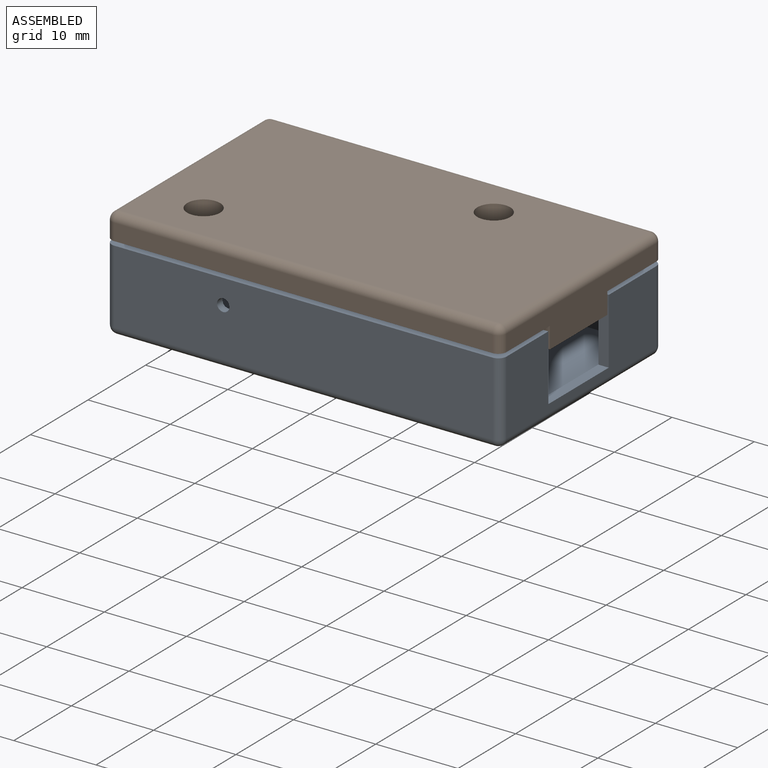
[diagram: assembled view]
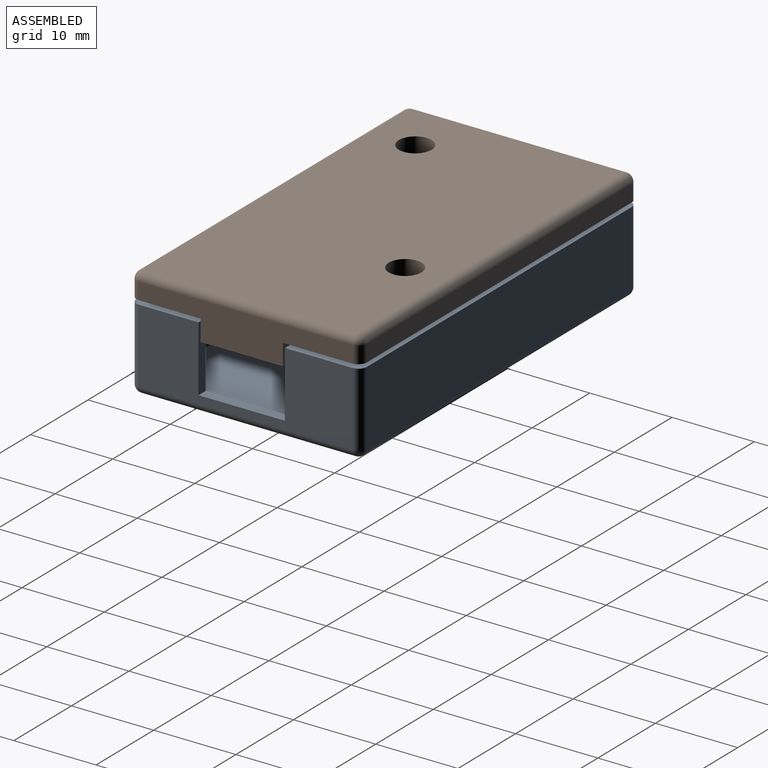
[diagram: assembled view, second angle]
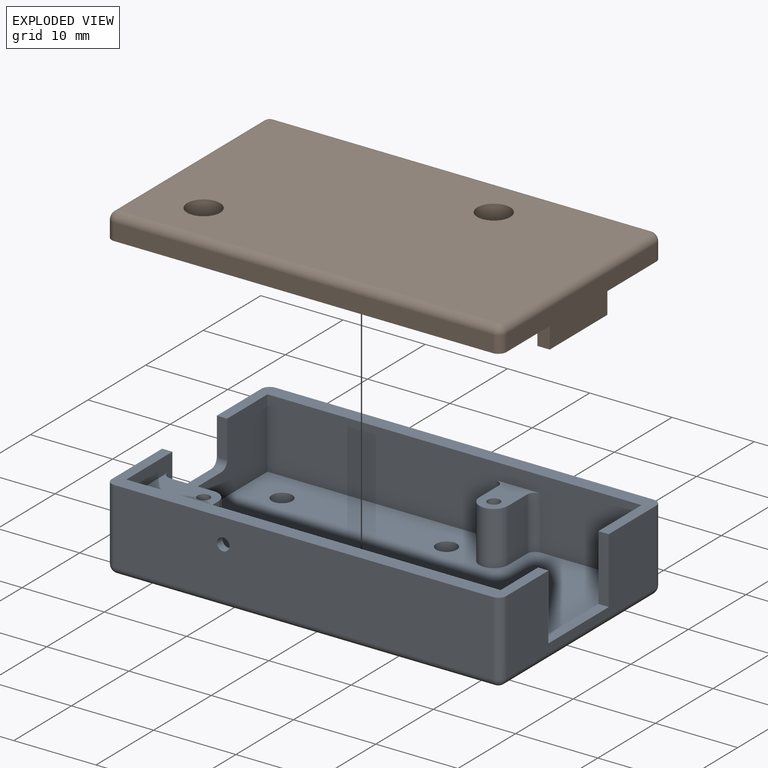
[diagram: exploded view]
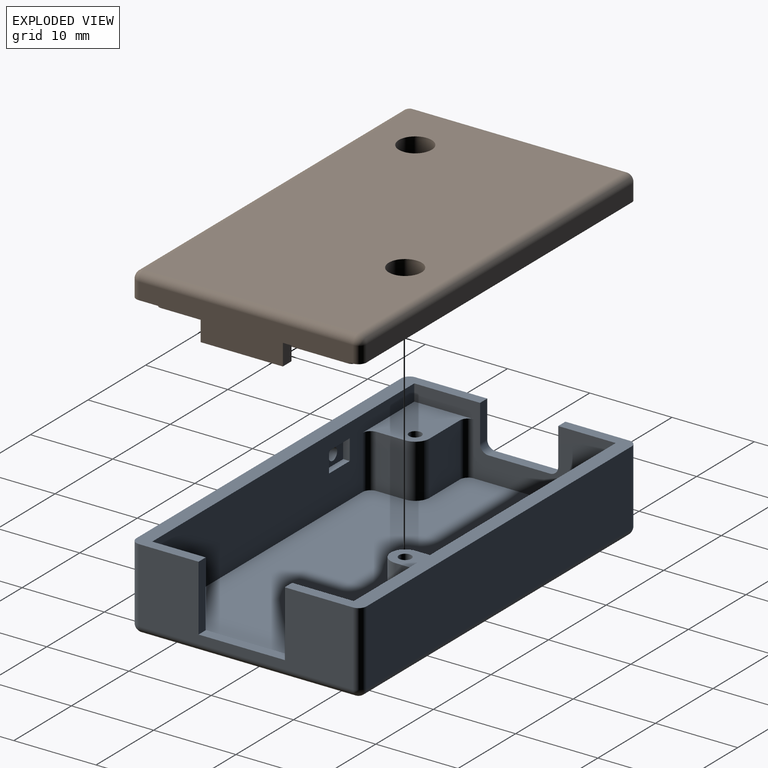
[diagram: exploded view, second angle]
FCSTD DOCUMENT  (FreeCAD 1.0R39109 (Git))
Label: M23002
License: All rights reserved
LicenseURL: http://en.wikipedia.org/wiki/All_rights_reserved
objects: Sketcher::SketchObject×15, PartDesign::Pocket×10, PartDesign::Pad×5, PartDesign::Fillet×5, TechDraw::DrawViewAnnotation×4, PartDesign::Body×2, App::Part×2, TechDraw::DrawProjGroupItem×2, App::Link×2, App::FeaturePython×2, TechDraw::DrawSVGTemplate×1, Spreadsheet::Sheet×1, TechDraw::DrawViewSpreadsheet×1, TechDraw::DrawPage×1, App::DocumentObjectGroup×1, Assembly::JointGroup×1, Assembly::AssemblyObject×1
note: 92 computed .brp shape members not serialized (recipe doc carries the construction recipe); baked Part::Feature solids carry a one-line shape summary decoded from their .brp

FEATURE [TechDraw::DrawSVGTemplate] Template
  EditableTexts = 1 OF 1=1 OF 1; 1=1=2:1; A=A; DRAWING No.=M23002; DRAWN BY=JPK; DRW_DATE=02/13/2025; MATERIAL=NYLON PA12, WHT; TITLE LINE 1=HOUSING, NEOPIXEL DRIVER; UNITS=MILLIMETERS
  Height = 431.8
  Orientation = 1
  Template = <userpath>/Downloads/FreeCAD ASME Y14.1 Compliant Engineering Drawing Templates Size_ ANSI A, B, C, D, & E - 6219052/files/ANSI_C_Metric.svg
  Width = 558.8
FEATURE [TechDraw::DrawViewAnnotation] Annotation
  Font = osifont
  LineSpace = 100
  LockPosition = false
  MaxWidth = -1
  Rotation = 0
  Scale = 2
  ScaleType = 0
  Text = -1
  TextSize = 8
  TextStyle = 0
  X = 335.125
  Y = 257.895
FEATURE [TechDraw::DrawViewAnnotation] Annotation001
  Font = osifont
  LineSpace = 100
  LockPosition = false
  MaxWidth = -1
  Rotation = 0
  Scale = 2
  ScaleType = 0
  Text = -2
  TextSize = 8
  TextStyle = 0
  X = 339.163
  Y = 152.907
FEATURE [TechDraw::DrawViewAnnotation] Annotation002
  Font = osifont
  LineSpace = 100
  LockPosition = false
  MaxWidth = 200
  Rotation = 0
  ScaleType = 1
  Text = NOTES | 1. FABRICATE USING POWDER BED FUSION PROCESS PER ELECTRONIC DATA FILE. FABRICATION ORIENTATION TO BE SELECTED BY VENDOR. | 2. SURFACE ROUGHNESS (RA) SHALL NOT EXCEED 10 MICROMETERS PER ASME B46.1 | 3. IDENTIFY PART WITH PART NUMBER AND REVISION BY BAGGING AND TAGGING.
  TextSize = 4
  TextStyle = 0
  X = 124.179
  Y = 385.021
FEATURE [Spreadsheet::Sheet] Spreadsheet001  label="Data Files"
  cells = A1='ELECTRONIC DATA FILE LIST; A2='DASH NO.; B2='FILE NAME; A3=-1; B3='M23002-1_revNC.stl; A4=-2; B4='M23002-2_revNC.stl
FEATURE [TechDraw::DrawViewSpreadsheet] Sheet
  CellEnd = B4
  CellStart = A1
  Font = osifont
  LineWidth = 1
  LockPosition = false
  Rotation = 0
  ScaleType = 2
  Source = -> Spreadsheet001
  Symbol = <svg\n	xmlns="http://www.w3.org/2000/svg" version="1.1"\n	xmlns:freecad="https://www.freecad.org/wiki/index.php?title=Svg_Namespace">\n<g id="Sheet">\n  <g id="Sheet_colA">\n    <rect x="0" y="0" width="426" height="30" style="fill:none;stroke-width:1;stroke:#000000;" />\n    <text text-anchor="middle" style="" x="213" y="22.5" font-family="osifont" font-size="18" fill="#000000">ELECTRONIC DATA FILE LIST</text>\n    <rect x="0" y="30" width="100" height="30" style="fill:none;stroke-width:1;stroke:#000000;" />\n    <text text-anchor="middle" style="" x="50" y="52.5" font-family="osifont" font-size="18" fill="#000000">DASH NO.</text>\n    <rect x="0" y="60" width="100" height="30" style="fill:none;stroke-width:1;stroke:#000000;" />\n    <text text-anchor="middle" style="" x="50" y="82.5" font-family="osifont" font-size="18" fill="#000000">-1</text>\n    <rect x="0" y="90" width="100" height="30" style="fill:none;stroke-width:1;stroke:#000000;" />\n    <text text-anchor="middle" style="" x="50" y="112.5" font-family="osifont" font-size="18" fill="#000000">-2</text>\n  </g>\n  <g id="Sheet_colB">\n    <rect x="100" y="30" width="326" height="30" style="fill:none;stroke-width:1;stroke:#000000;" />\n    <text text-anchor="middle" style="" x="263" y="52.5" font-family="osifont" font-size="18" fill="#000000">FILE NAME</text>\n    <rect x="100" y="60" width="326" height="30" style="fill:none;stroke-width:1;stroke:#000000;" />\n    <text style="" x="109" y="82.5" font-family="osifont" font-size="18" fill="#000000">M23002-1_revNC.stl</text>\n    <rect x="100" y="90" width="326" height="30" style="fill:none;stroke-width:1;stroke:#000000;" />\n    <text style="" x="109" y="112.5" font-family="osifont" font-size="18" fill="#000000">M23002-2_revNC.stl</text>\n  </g>\n</g>\n\n</svg>
  TextSize = 18
  X = 81.6872
  Y = 331.232
FEATURE [Sketcher::SketchObject] Sketch
  ArcFitTolerance = 1e-06
  AttachmentSupport = -> [XY_Plane009]
  FullyConstrained = true
  MakeInternals = false
  MapMode = 5
  sketch-geometry (5):
    g0: LineSegment StartX=-24 StartY=-14 StartZ=0 EndX=24 EndY=-14 EndZ=0
    g1: LineSegment StartX=24 StartY=-14 StartZ=0 EndX=24 EndY=14 EndZ=0
    g2: LineSegment StartX=24 StartY=14 StartZ=0 EndX=-24 EndY=14 EndZ=0
    g3: LineSegment StartX=-24 StartY=14 StartZ=0 EndX=-24 EndY=-14 EndZ=0
    g4: GeomPoint [constr] X=0 Y=0 Z=0
  constraints (12):
    c: Coincident(g0,g1)
    c: Coincident(g1,g2)
    c: Coincident(g2,g3)
    c: Coincident(g3,g0)
    c: Horizontal(g0)
    c: Horizontal(g2)
    c: Vertical(g1)
    c: Vertical(g3)
    c: Symmetric(g2,g0,g4)
    c: Coincident(g4,g-1)
    c: DistanceX(g2,g2) = 48
    c: DistanceY(g3,g3) = 28
FEATURE [PartDesign::Pad] Pad
  Direction = (0,0,1)
  Length = 10
  Length2 = 10
  Profile = -> Sketch
  ReferenceAxis = -> Sketch [N_Axis]
  Refine = true
  Suppressed = false
  Type = 0
FEATURE [Sketcher::SketchObject] Sketch001
  ArcFitTolerance = 1e-06
  AttachmentSupport = -> [Pad]
  FullyConstrained = true
  MakeInternals = false
  MapMode = 5
  Placement = pos=(0,0,10) rot=(0,0,1;0rad)
  sketch-geometry (5):
    g0: LineSegment StartX=-22.75 StartY=-12.25 StartZ=0 EndX=22.75 EndY=-12.25 EndZ=0
    g1: LineSegment StartX=22.75 StartY=-12.25 StartZ=0 EndX=22.75 EndY=12.25 EndZ=0
    g2: LineSegment StartX=22.75 StartY=12.25 StartZ=0 EndX=-22.75 EndY=12.25 EndZ=0
    g3: LineSegment StartX=-22.75 StartY=12.25 StartZ=0 EndX=-22.75 EndY=-12.25 EndZ=0
    g4: GeomPoint [constr] X=0 Y=0 Z=0
  constraints (12):
    c: Coincident(g0,g1)
    c: Coincident(g1,g2)
    c: Coincident(g2,g3)
    c: Coincident(g3,g0)
    c: Horizontal(g0)
    c: Horizontal(g2)
    c: Vertical(g1)
    c: Vertical(g3)
    c: Symmetric(g2,g0,g4)
    c: Coincident(g4,g-1)
    c: DistanceX(g2,g2) = 45.5
    c: Distance(g1,g1) = 24.5
FEATURE [PartDesign::Pocket] Pocket
  BaseFeature = -> Pad
  Direction = (0,0,-1)
  Length = 8.5
  Length2 = 5
  Profile = -> Sketch001
  ReferenceAxis = -> Sketch001 [N_Axis]
  Refine = true
  Suppressed = false
  Type = 0
FEATURE [Sketcher::SketchObject] Sketch002
  ArcFitTolerance = 1e-06
  AttachmentSupport = -> [Pocket]
  ExternalGeometry = -> [Pocket]
  FullyConstrained = true
  MakeInternals = false
  MapMode = 5
  Placement = pos=(0,0,1.5) rot=(0,0,1;0rad)
  sketch-geometry (9):
    g0: LineSegment StartX=-22.75 StartY=-6 StartZ=0 EndX=-16.5 EndY=-6 EndZ=0
    g1: LineSegment StartX=-14.75 StartY=-12.25 StartZ=0 EndX=-14.75 EndY=-7.75 EndZ=0
    g2: ArcOfCircle CenterX=-16.5 CenterY=-7.75 CenterZ=0 NormalX=0 NormalY=0 NormalZ=1 AngleXU=0 Radius=1.75 StartAngle=-1.8465e-12 EndAngle=1.5708
    g3: LineSegment StartX=6 StartY=12.25 StartZ=0 EndX=6 EndY=8 EndZ=0
    g4: LineSegment StartX=9.5 StartY=12.25 StartZ=0 EndX=9.5 EndY=8 EndZ=0
    g5: ArcOfCircle CenterX=7.75 CenterY=8 CenterZ=0 NormalX=0 NormalY=0 NormalZ=1 AngleXU=0 Radius=1.75 StartAngle=3.14159 EndAngle=6.28319
    g6: LineSegment StartX=-22.75 StartY=-6 StartZ=0 EndX=-22.75 EndY=-12.25 EndZ=0
    g7: LineSegment StartX=-22.75 StartY=-12.25 StartZ=0 EndX=-14.75 EndY=-12.25 EndZ=0
    g8: LineSegment StartX=6 StartY=12.25 StartZ=0 EndX=9.5 EndY=12.25 EndZ=0
  constraints (25):
    c: PointOnObject(g0,g-3)
    c: Horizontal(g0)
    c: PointOnObject(g1,g-5)
    c: Vertical(g1)
    c: Tangent(g2,g1) = -1.5708
    c: Tangent(g2,g0) = 1.5708
    c: Radius(g2) = 1.75
    c: Distance(g2,g-3) = 6.25
    c: Distance(g2,g-5) = 4.5
    c: PointOnObject(g3,g-4)
    c: Vertical(g3)
    c: PointOnObject(g4,g-4)
    c: Vertical(g4)
    c: Coincident(g5,g4)
    c: Tangent(g4,g5,g4) = 1.5708
    c: Tangent(g5,g3) = -1.5708
    c: Equal(g5,g2)
    c: Distance(g5,g-3) = 30.5
    c: Distance(g5,g-5) = 20.25
    c: Coincident(g6,g0)
    c: Coincident(g6,g-5)
    c: Coincident(g7,g6)
    c: Coincident(g7,g1)
    c: Coincident(g8,g3)
    c: Coincident(g8,g4)
FEATURE [PartDesign::Pad] Pad001
  BaseFeature = -> Pocket
  Direction = (0,0,1)
  Length = 6.5
  Length2 = 10
  Profile = -> Sketch002
  ReferenceAxis = -> Sketch002 [N_Axis]
  Refine = true
  Suppressed = false
  Type = 0
FEATURE [Sketcher::SketchObject] Sketch003
  ArcFitTolerance = 1e-06
  AttachmentSupport = -> [Pad001]
  ExternalGeometry = -> [Pad001]
  FullyConstrained = true
  MakeInternals = false
  MapMode = 5
  Placement = pos=(0,0,8) rot=(0,0,1;0rad)
  sketch-geometry (2):
    g0: Circle CenterX=-16.5 CenterY=-7.75 CenterZ=0 NormalX=0 NormalY=0 NormalZ=1 AngleXU=0 Radius=0.75
    g1: Circle CenterX=7.75 CenterY=8 CenterZ=0 NormalX=0 NormalY=0 NormalZ=1 AngleXU=0 Radius=0.75
  constraints (4):
    c: Diameter(g0) = 1.5
    c: Coincident(g0,g-3)
    c: Coincident(g1,g-4)
    c: Equal(g1,g0)
FEATURE [PartDesign::Pocket] Pocket001
  BaseFeature = -> Pad001
  Direction = (0,0,-1)
  Length = 5
  Length2 = 5
  Profile = -> Sketch003
  ReferenceAxis = -> Sketch003 [N_Axis]
  Refine = true
  Suppressed = false
  Type = 0
FEATURE [Sketcher::SketchObject] Sketch004
  ArcFitTolerance = 1e-06
  AttachmentSupport = -> [Pocket001]
  ExternalGeometry = -> [Pocket001]
  FullyConstrained = true
  MakeInternals = false
  MapMode = 5
  Placement = pos=(-24,0,0) rot=(0.57735,-0.57735,-0.57735;2.0944rad)
  sketch-geometry (4):
    g0: LineSegment StartX=-5.25 StartY=10 StartZ=0 EndX=-5.25 EndY=4.5 EndZ=0
    g1: LineSegment StartX=-5.25 StartY=4.5 StartZ=0 EndX=4.25 EndY=4.5 EndZ=0
    g2: LineSegment StartX=4.25 StartY=4.5 StartZ=0 EndX=4.25 EndY=10 EndZ=0
    g3: LineSegment StartX=4.25 StartY=10 StartZ=0 EndX=-5.25 EndY=10 EndZ=0
  constraints (12):
    c: Coincident(g0,g1)
    c: Coincident(g1,g2)
    c: Coincident(g2,g3)
    c: Coincident(g3,g0)
    c: Vertical(g0)
    c: Vertical(g2)
    c: Horizontal(g1)
    c: Horizontal(g3)
    c: PointOnObject(g0,g-3)
    c: DistanceX(g3,g3) = 9.5
    c: Distance(g2,g2) = 5.5
    c: Distance(g2,g-4) = 9.75
FEATURE [PartDesign::Pocket] Pocket002
  BaseFeature = -> Pocket001
  Direction = (1,0,0)
  Length = 5
  Length2 = 5
  Profile = -> Sketch004
  ReferenceAxis = -> Sketch004 [N_Axis]
  Refine = true
  Suppressed = false
  Type = 2
FEATURE [Sketcher::SketchObject] Sketch005
  ArcFitTolerance = 1e-06
  AttachmentSupport = -> [Pocket002]
  ExternalGeometry = -> [Pocket002]
  FullyConstrained = true
  MakeInternals = false
  MapMode = 5
  Placement = pos=(24,0,0) rot=(0.57735,0.57735,0.57735;2.0944rad)
  expr: Constraints[11] = 2 + 6.48 - (10.5 - 10.05) / 2
  sketch-geometry (4):
    g0: LineSegment StartX=-5.745 StartY=10 StartZ=0 EndX=-5.745 EndY=2 EndZ=0
    g1: LineSegment StartX=-5.745 StartY=2 StartZ=0 EndX=4.755 EndY=2 EndZ=0
    g2: LineSegment StartX=4.755 StartY=2 StartZ=0 EndX=4.755 EndY=10 EndZ=0
    g3: LineSegment StartX=4.755 StartY=10 StartZ=0 EndX=-5.745 EndY=10 EndZ=0
  constraints (12):
    c: Coincident(g0,g1)
    c: Coincident(g1,g2)
    c: Coincident(g2,g3)
    c: Coincident(g3,g0)
    c: Vertical(g0)
    c: Vertical(g2)
    c: Horizontal(g1)
    c: Horizontal(g3)
    c: PointOnObject(g0,g-3)
    c: DistanceX(g3,g3) = 10.5
    c: DistanceY(g0,g0) = 8
    c: Distance(g0,g-4) = 8.255
FEATURE [PartDesign::Pocket] Pocket003
  BaseFeature = -> Pocket002
  Direction = (-1,0,0)
  Length = 5
  Length2 = 5
  Profile = -> Sketch005
  ReferenceAxis = -> Sketch005 [N_Axis]
  Refine = true
  Suppressed = false
  Type = 2
FEATURE [PartDesign::Fillet] Fillet
  Base = -> Pocket003 [Edge28,Edge26,Edge43,Edge48,Edge53,Edge55]
  BaseFeature = -> Pocket003
  Radius = 1
  Refine = true
  SupportTransform = false
  Suppressed = false
  UseAllEdges = false
FEATURE [PartDesign::Fillet] Fillet001
  Base = -> Fillet [Edge5,Edge24,Edge25,Edge7,Edge9,Edge29,Edge32,Edge28]
  BaseFeature = -> Fillet
  Radius = 1
  Refine = true
  SupportTransform = false
  Suppressed = false
  UseAllEdges = false
FEATURE [Sketcher::SketchObject] Sketch012
  ArcFitTolerance = 1e-06
  AttachmentSupport = -> [Fillet001]
  ExternalGeometry = -> [Fillet001]
  FullyConstrained = true
  MakeInternals = false
  MapMode = 5
  Placement = pos=(0,-14,0) rot=(1,0,0;1.5708rad)
  sketch-geometry (1):
    g0: Circle CenterX=-9.75 CenterY=7 CenterZ=0 NormalX=0 NormalY=0 NormalZ=1 AngleXU=0 Radius=0.75
  constraints (3):
    c: Diameter(g0) = 1.5
    c: Distance(g0,g-3) = 14.25
    c: Distance(g0,g-4) = 3
FEATURE [PartDesign::Pocket] Pocket007
  BaseFeature = -> Fillet001
  Direction = (0,1,-2e-16)
  Length = 5
  Length2 = 5
  Profile = -> Sketch012
  ReferenceAxis = -> Sketch012 [N_Axis]
  Refine = true
  Suppressed = false
  Type = 2
FEATURE [Sketcher::SketchObject] Sketch013
  ArcFitTolerance = 1e-06
  AttachmentSupport = -> [Pocket007]
  ExternalGeometry = -> [Pocket007]
  FullyConstrained = true
  MakeInternals = false
  MapMode = 5
  Placement = pos=(0,-12.25,0) rot=(0,0.707107,0.707107;3.14159rad)
  sketch-geometry (5):
    g0: LineSegment StartX=7.95 StartY=8.25 StartZ=0 EndX=7.95 EndY=5.75 EndZ=0
    g1: LineSegment StartX=7.95 StartY=5.75 StartZ=0 EndX=11.55 EndY=5.75 EndZ=0
    g2: LineSegment StartX=11.55 StartY=5.75 StartZ=0 EndX=11.55 EndY=8.25 EndZ=0
    g3: LineSegment StartX=11.55 StartY=8.25 StartZ=0 EndX=7.95 EndY=8.25 EndZ=0
    g4: GeomPoint [constr] X=9.75 Y=7 Z=0
  constraints (12):
    c: Coincident(g0,g1)
    c: Coincident(g1,g2)
    c: Coincident(g2,g3)
    c: Coincident(g3,g0)
    c: Vertical(g0)
    c: Vertical(g2)
    c: Horizontal(g1)
    c: Horizontal(g3)
    c: Symmetric(g2,g0,g4)
    c: Coincident(g4,g-3)
    c: DistanceX(g3,g3) = 3.6
    c: DistanceY(g2,g2) = 2.5
FEATURE [PartDesign::Pocket] Pocket008
  BaseFeature = -> Pocket007
  Direction = (0,-1,2e-16)
  Length = 0.8
  Length2 = 5
  Profile = -> Sketch013
  ReferenceAxis = -> Sketch013 [N_Axis]
  Refine = true
  Suppressed = false
  Type = 0
FEATURE [Sketcher::SketchObject] Sketch015
  ArcFitTolerance = 1e-06
  AttachmentSupport = -> [Pocket008]
  ExternalGeometry = -> [Pocket008]
  FullyConstrained = true
  MakeInternals = false
  MapMode = 5
  Placement = pos=(0,0,1.5) rot=(0,0,1;0rad)
  sketch-geometry (2):
    g0: Circle CenterX=-18 CenterY=8 CenterZ=0 NormalX=0 NormalY=0 NormalZ=1 AngleXU=0 Radius=1.25
    g1: Circle CenterX=2 CenterY=8 CenterZ=0 NormalX=0 NormalY=0 NormalZ=1 AngleXU=0 Radius=1.25
  constraints (6):
    c: Equal(g0,g1)
    c: Distance(g0,g-3) = 6
    c: Distance(g1,g-3) = 6
    c: Distance(g0,g-4) = 6
    c: Distance(g1,g-4) = 26
    c: Diameter(g0) = 2.5
FEATURE [PartDesign::Pocket] Pocket009
  BaseFeature = -> Pocket008
  Direction = (0,0,-1)
  Length = 5
  Length2 = 5
  Profile = -> Sketch015
  ReferenceAxis = -> Sketch015 [N_Axis]
  Refine = true
  Suppressed = false
  Type = 1
FEATURE [PartDesign::Body] Body  label="M23002-1-BODY"
  AllowCompound = false
  Group = -> [Sketch,Pad,Sketch001,Pocket,Sketch002,Pad001,Sketch003,Pocket001,Sketch004,Pocket002,Sketch005,Pocket003,Fillet,Fillet001,Sketch012,Pocket007,Sketch013,Pocket008,Sketch015,Pocket009]
  Origin = -> Origin009
  Tip = -> Pocket009
FEATURE [App::Part] Part  label="M23002-1"
  Group = -> [Body]
  Origin = -> Origin008
FEATURE [TechDraw::DrawProjGroupItem] View
  CoarseView = false
  Direction = (0.409575,-0.709407,0.573577)
  Focus = 100
  HardHidden = false
  IsoCount = 0
  IsoHidden = false
  IsoVisible = false
  LockPosition = false
  Perspective = false
  Rotation = 0
  RotationVector = (1,0,0)
  Scale = 2
  ScaleType = 0
  ScrubCount = 1
  SeamHidden = false
  SeamVisible = false
  SmoothHidden = false
  SmoothVisible = true
  Source = -> [Part]
  Type = 0
  X = 370.659
  XDirection = (0.866026,0.499999,4.05816e-07)
  Y = 291.684
FEATURE [Sketcher::SketchObject] Sketch006
  ArcFitTolerance = 1e-06
  AttachmentSupport = -> [XY_Plane012]
  FullyConstrained = true
  MakeInternals = false
  MapMode = 5
  sketch-geometry (5):
    g0: LineSegment StartX=-24 StartY=14 StartZ=0 EndX=-24 EndY=-14 EndZ=0
    g1: LineSegment StartX=-24 StartY=-14 StartZ=0 EndX=24 EndY=-14 EndZ=0
    g2: LineSegment StartX=24 StartY=-14 StartZ=0 EndX=24 EndY=14 EndZ=0
    g3: LineSegment StartX=24 StartY=14 StartZ=0 EndX=-24 EndY=14 EndZ=0
    g4: GeomPoint [constr] X=0 Y=-1e-16 Z=0
  constraints (12):
    c: Coincident(g0,g1)
    c: Coincident(g1,g2)
    c: Coincident(g2,g3)
    c: Coincident(g3,g0)
    c: Vertical(g0)
    c: Vertical(g2)
    c: Horizontal(g1)
    c: Horizontal(g3)
    c: Symmetric(g2,g0,g4)
    c: Coincident(g4,g-1)
    c: DistanceX(g3,g3) = 48
    c: DistanceY(g0,g0) = 28
FEATURE [PartDesign::Pad] Pad002
  Direction = (0,0,1)
  Length = 4
  Length2 = 10
  Profile = -> Sketch006
  ReferenceAxis = -> Sketch006 [N_Axis]
  Refine = true
  Suppressed = false
  Type = 0
FEATURE [Sketcher::SketchObject] Sketch007
  ArcFitTolerance = 1e-06
  AttachmentSupport = -> [Pad002]
  ExternalGeometry = -> [Pad002]
  FullyConstrained = true
  MakeInternals = false
  MapMode = 5
  Placement = pos=(0,0,4) rot=(0,0,1;0rad)
  sketch-geometry (15):
    g0: LineSegment StartX=-24 StartY=-14 StartZ=0 EndX=24 EndY=-14 EndZ=0
    g1: LineSegment StartX=24 StartY=-14 StartZ=0 EndX=24 EndY=14 EndZ=0
    g2: LineSegment StartX=24 StartY=14 StartZ=0 EndX=-24 EndY=14 EndZ=0
    g3: LineSegment StartX=-24 StartY=14 StartZ=0 EndX=-24 EndY=-14 EndZ=0
    g4: GeomPoint [constr] X=0 Y=0 Z=0
    g5: LineSegment StartX=-22.5 StartY=-12 StartZ=0 EndX=22.5 EndY=-12 EndZ=0
    g6: LineSegment StartX=22.5 StartY=-12 StartZ=0 EndX=22.5 EndY=12 EndZ=0
    g7: LineSegment StartX=22.5 StartY=12 StartZ=0 EndX=-22.5 EndY=12 EndZ=0
    g8: LineSegment StartX=-22.5 StartY=12 StartZ=0 EndX=-22.5 EndY=-12 EndZ=0
    g9: GeomPoint [constr] X=0 Y=0 Z=0
    g10: LineSegment StartX=-20.75 StartY=-10.25 StartZ=0 EndX=20.75 EndY=-10.25 EndZ=0
    g11: LineSegment StartX=20.75 StartY=-10.25 StartZ=0 EndX=20.75 EndY=10.25 EndZ=0
    g12: LineSegment StartX=20.75 StartY=10.25 StartZ=0 EndX=-20.75 EndY=10.25 EndZ=0
    g13: LineSegment StartX=-20.75 StartY=10.25 StartZ=0 EndX=-20.75 EndY=-10.25 EndZ=0
    g14: GeomPoint [constr] X=0 Y=0 Z=0
  constraints (35):
    c: Coincident(g0,g1)
    c: Coincident(g1,g2)
    c: Coincident(g2,g3)
    c: Coincident(g3,g0)
    c: Horizontal(g0)
    c: Horizontal(g2)
    c: Vertical(g1)
    c: Vertical(g3)
    c: Symmetric(g2,g0,g4)
    c: Coincident(g4,g-1)
    c: Coincident(g1,g-5)
    c: Coincident(g5,g6)
    c: Coincident(g6,g7)
    c: Coincident(g7,g8)
    c: Coincident(g8,g5)
    c: Horizontal(g5)
    c: Horizontal(g7)
    c: Vertical(g6)
    c: Vertical(g8)
    c: Symmetric(g7,g5,g9)
    c: Coincident(g9,g4)
    c: DistanceX(g7,g7) = 45
    c: Distance(g6,g6) = 24
    c: Coincident(g10,g11)
    c: Coincident(g11,g12)
    c: Coincident(g12,g13)
    c: Coincident(g13,g10)
    c: Horizontal(g10)
    c: Horizontal(g12)
    c: Vertical(g11)
    c: Vertical(g13)
    c: Symmetric(g12,g10,g14)
    c: Coincident(g14,g4)
    c: DistanceX(g12,g12) = 41.5
    c: DistanceY(g11,g11) = 20.5
FEATURE [PartDesign::Pocket] Pocket004
  BaseFeature = -> Pad002
  Direction = (0,0,-1)
  Length = 1
  Length2 = 5
  Profile = -> Sketch007
  ReferenceAxis = -> Sketch007 [N_Axis]
  Refine = true
  Suppressed = false
  Type = 0
FEATURE [Sketcher::SketchObject] Sketch008
  ArcFitTolerance = 1e-06
  AttachmentSupport = -> [Pocket004]
  ExternalGeometry = -> [Pocket004]
  FullyConstrained = true
  MakeInternals = false
  MapMode = 5
  Placement = pos=(0,0,3) rot=(0,0,1;0rad)
  sketch-geometry (9):
    g0: LineSegment StartX=5.25 StartY=-10.25 StartZ=0 EndX=5.25 EndY=-8 EndZ=0
    g1: LineSegment StartX=10.25 StartY=-10.25 StartZ=0 EndX=10.25 EndY=-8 EndZ=0
    g2: ArcOfCircle CenterX=7.75 CenterY=-8 CenterZ=0 NormalX=0 NormalY=0 NormalZ=1 AngleXU=0 Radius=2.5 StartAngle=0 EndAngle=3.14159
    g3: LineSegment StartX=5.25 StartY=-10.25 StartZ=0 EndX=10.25 EndY=-10.25 EndZ=0
    g4: LineSegment StartX=-20.75 StartY=10.25 StartZ=0 EndX=-20.75 EndY=5.25 EndZ=0
    g5: LineSegment StartX=-20.75 StartY=5.25 StartZ=0 EndX=-16.5 EndY=5.25 EndZ=0
    g6: LineSegment StartX=-14 StartY=7.75 StartZ=0 EndX=-14 EndY=10.25 EndZ=0
    g7: LineSegment StartX=-14 StartY=10.25 StartZ=0 EndX=-20.75 EndY=10.25 EndZ=0
    g8: ArcOfCircle CenterX=-16.5 CenterY=7.75 CenterZ=0 NormalX=0 NormalY=0 NormalZ=1 AngleXU=0 Radius=2.5 StartAngle=4.71239 EndAngle=6.28319
  constraints (24):
    c: PointOnObject(g0,g-6)
    c: Vertical(g0)
    c: PointOnObject(g1,g-6)
    c: Vertical(g1)
    c: Tangent(g2,g1) = -1.5708
    c: Tangent(g2,g0) = 1.5708
    c: Coincident(g3,g0)
    c: Coincident(g3,g1)
    c: Coincident(g4,g-8)
    c: PointOnObject(g4,g-7)
    c: Coincident(g5,g4)
    c: Horizontal(g5)
    c: PointOnObject(g6,g-8)
    c: Vertical(g6)
    c: Coincident(g7,g4)
    c: Equal(g8,g2)
    c: Tangent(g8,g6) = -1.5708
    c: Tangent(g8,g5) = -1.5708
    c: Coincident(g7,g6)
    c: Radius(g8) = 2.5
    c: Distance(g8,g-3) = 6
    c: Distance(g8,g-4) = 4.25
    c: Distance(g2,g-3) = 30.25
    c: Distance(g2,g-4) = 20
FEATURE [PartDesign::Pad] Pad003
  BaseFeature = -> Pocket004
  Direction = (0,0,1)
  Length = 1
  Length2 = 10
  Profile = -> Sketch008
  ReferenceAxis = -> Sketch008 [N_Axis]
  Refine = true
  Suppressed = false
  Type = 0
FEATURE [Sketcher::SketchObject] Sketch009
  ArcFitTolerance = 1e-06
  AttachmentSupport = -> [Pad003]
  ExternalGeometry = -> [Pad003]
  FullyConstrained = true
  MakeInternals = false
  MapMode = 5
  Placement = pos=(0,0,4) rot=(0,0,1;0rad)
  sketch-geometry (2):
    g0: Circle CenterX=-16.5 CenterY=7.75 CenterZ=0 NormalX=0 NormalY=0 NormalZ=1 AngleXU=0 Radius=1.1
    g1: Circle CenterX=7.75 CenterY=-8 CenterZ=0 NormalX=0 NormalY=0 NormalZ=1 AngleXU=0 Radius=1.1
  constraints (4):
    c: Coincident(g0,g-3)
    c: Diameter(g1) = 2.2
    c: Coincident(g1,g-4)
    c: Equal(g1,g0)
FEATURE [PartDesign::Pocket] Pocket005
  BaseFeature = -> Pad003
  Direction = (0,0,-1)
  Length = 5
  Length2 = 5
  Profile = -> Sketch009
  ReferenceAxis = -> Sketch009 [N_Axis]
  Refine = true
  Suppressed = false
  Type = 1
FEATURE [Sketcher::SketchObject] Sketch010
  ArcFitTolerance = 1e-06
  AttachmentSupport = -> [Pocket005]
  ExternalGeometry = -> [Pocket005]
  FullyConstrained = true
  MakeInternals = false
  MapMode = 5
  Placement = pos=(0,0,0) rot=(1,0,0;3.14159rad)
  sketch-geometry (2):
    g0: Circle CenterX=-16.5 CenterY=-7.75 CenterZ=0 NormalX=0 NormalY=0 NormalZ=1 AngleXU=0 Radius=2
    g1: Circle CenterX=7.75 CenterY=8 CenterZ=0 NormalX=0 NormalY=0 NormalZ=1 AngleXU=0 Radius=2
  constraints (4):
    c: Diameter(g0) = 4
    c: Coincident(g0,g-3)
    c: Coincident(g1,g-4)
    c: Equal(g1,g0)
FEATURE [PartDesign::Pocket] Pocket006
  BaseFeature = -> Pocket005
  Direction = (0,0,1)
  Length = 2
  Length2 = 5
  Profile = -> Sketch010
  ReferenceAxis = -> Sketch010 [N_Axis]
  Refine = true
  Suppressed = false
  Type = 0
FEATURE [Sketcher::SketchObject] Sketch011
  ArcFitTolerance = 1e-06
  AttachmentSupport = -> [Pocket006]
  ExternalGeometry = -> [Pocket006]
  FullyConstrained = true
  MakeInternals = false
  MapMode = 5
  Placement = pos=(0,0,3) rot=(0,0,1;0rad)
  sketch-geometry (8):
    g0: LineSegment StartX=-24 StartY=4 StartZ=0 EndX=-24 EndY=-5 EndZ=0
    g1: LineSegment StartX=-24 StartY=-5 StartZ=0 EndX=-22.5 EndY=-5 EndZ=0
    g2: LineSegment StartX=-22.5 StartY=-5 StartZ=0 EndX=-22.5 EndY=4 EndZ=0
    g3: LineSegment StartX=-22.5 StartY=4 StartZ=0 EndX=-24 EndY=4 EndZ=0
    g4: LineSegment StartX=22.5 StartY=5.495 StartZ=0 EndX=22.5 EndY=-4.505 EndZ=0
    g5: LineSegment StartX=22.5 StartY=-4.505 StartZ=0 EndX=24 EndY=-4.505 EndZ=0
    g6: LineSegment StartX=24 StartY=-4.505 StartZ=0 EndX=24 EndY=5.495 EndZ=0
    g7: LineSegment StartX=24 StartY=5.495 StartZ=0 EndX=22.5 EndY=5.495 EndZ=0
  constraints (24):
    c: Coincident(g0,g1)
    c: Coincident(g1,g2)
    c: Coincident(g2,g3)
    c: Coincident(g3,g0)
    c: Vertical(g0)
    c: Vertical(g2)
    c: Horizontal(g1)
    c: Horizontal(g3)
    c: PointOnObject(g0,g-3)
    c: PointOnObject(g1,g-4)
    c: Coincident(g4,g5)
    c: Coincident(g5,g6)
    c: Coincident(g6,g7)
    c: Coincident(g7,g4)
    c: Vertical(g4)
    c: Vertical(g6)
    c: Horizontal(g5)
    c: Horizontal(g7)
    c: PointOnObject(g4,g-5)
    c: PointOnObject(g5,g-6)
    c: Distance(g0,g0) = 9
    c: Distance(g6,g6) = 10
    c: Distance(g0,g-7) = 10
    c: Distance(g6,g-7) = 8.505
FEATURE [PartDesign::Pad] Pad004
  BaseFeature = -> Pocket006
  Direction = (0,0,1)
  Length = 2.6
  Length2 = 10
  Profile = -> Sketch011
  ReferenceAxis = -> Sketch011 [N_Axis]
  Refine = true
  Suppressed = false
  Type = 0
FEATURE [PartDesign::Fillet] Fillet002
  Base = -> Pad004 [Edge3,Edge1,Edge9,Edge17,Edge2,Edge4,Edge7,Edge19]
  BaseFeature = -> Pad004
  Radius = 1
  Refine = true
  SupportTransform = false
  Suppressed = false
  UseAllEdges = false
FEATURE [PartDesign::Fillet] Fillet003
  Base = -> Fillet002 [Edge108,Edge121,Edge123,Edge112,Edge110,Edge128,Edge125]
  BaseFeature = -> Fillet002
  Radius = 1
  Refine = true
  SupportTransform = false
  Suppressed = false
  UseAllEdges = false
FEATURE [PartDesign::Fillet] Fillet004
  Base = -> Fillet003 [Edge74,Edge71,Edge67,Edge76]
  BaseFeature = -> Fillet003
  Radius = 0.6
  Refine = true
  SupportTransform = false
  Suppressed = false
  UseAllEdges = false
FEATURE [PartDesign::Body] Body002  label="M23002-2-BODY"
  AllowCompound = false
  Group = -> [Sketch006,Pad002,Sketch007,Pocket004,Sketch008,Pad003,Sketch009,Pocket005,Sketch010,Pocket006,Sketch011,Pad004,Fillet002,Fillet003,Fillet004]
  Origin = -> Origin012
  Tip = -> Fillet004
FEATURE [App::Part] Part001  label="M23002-2"
  Group = -> [Body002]
  Origin = -> Origin011
FEATURE [TechDraw::DrawProjGroupItem] View001
  CoarseView = false
  Direction = (0.409575,-0.709407,0.573577)
  Focus = 100
  HardHidden = false
  IsoCount = 0
  IsoHidden = false
  IsoVisible = false
  LockPosition = false
  Perspective = false
  Rotation = 0
  RotationVector = (1,0,0)
  Scale = 2
  ScaleType = 0
  ScrubCount = 1
  SeamHidden = false
  SeamVisible = false
  SmoothHidden = false
  SmoothVisible = true
  Source = -> [Part001]
  Type = 0
  X = 370.659
  XDirection = (0.866026,0.499999,4.05816e-07)
  Y = 180.365
FEATURE [TechDraw::DrawViewAnnotation] Annotation003
  Font = osifont
  LineSpace = 100
  LockPosition = false
  MaxWidth = -1
  Rotation = 0
  Scale = 2
  ScaleType = 0
  Text = ISO VIEWS FOR REFERENCE ONLY
  TextSize = 5
  TextStyle = 0
  X = 370.659
  Y = 122.269
FEATURE [TechDraw::DrawPage] Page
  KeepUpdated = true
  NextBalloonIndex = 1
  ProjectionType = 0
  Scale = 2
  Template = -> Template
  Views = -> [View,View001,Annotation,Annotation001,Annotation002,Sheet,Annotation003]
FEATURE [App::DocumentObjectGroup] Group  label="Dwg"
  Group = -> [Spreadsheet001,Page]
FEATURE [App::Link] M23002_1  label="M23002-1-ASSY"
  LinkedObject = -> Part
FEATURE [App::FeaturePython] GroundedJoint  # Assembly grounded joint (typed FeaturePython)
  ObjectToGround = -> M23002_1
FEATURE [App::Link] M23002_2  label="M23002-2-ASSY"
  LinkPlacement = pos=(-1.8e-15,-3.6e-15,13.5) rot=(-1,0,0;3.14159rad)
  LinkedObject = -> Part001
  Placement = pos=(-1.8e-15,-3.6e-15,13.5) rot=(-1,0,0;3.14159rad)
FEATURE [App::FeaturePython] Joint  label="Fixed"  # Assembly joint (typed FeaturePython)
  Activated = true
  AngleMax = 0
  AngleMin = 0
  Detach1 = false
  Detach2 = false
  Distance = 0
  Distance2 = 0
  EnableAngleMax = false
  EnableAngleMin = false
  EnableLengthMax = false
  EnableLengthMin = false
  JointType = 0 (Fixed)
  LengthMax = 0
  LengthMin = 0
  Offset1 = pos=(0,0,1.5) rot=(1,0,0;3.14159rad)
  Offset2 = pos=(0,0,0) rot=(1,0,0;3.14159rad)
  Placement1 = pos=(7.75,8,9.5) rot=(1,0,0;3.14159rad)
  Placement2 = pos=(7.75,-8,4) rot=(1,0,0;3.14159rad)
  Reference1 = -> Assembly [M23002_1.Body.Edge140,M23002_1.Body.Edge140]
  Reference2 = -> Assembly [M23002_2.Body002.Edge31,M23002_2.Body002.Edge31]
FEATURE [Assembly::JointGroup] Joints
  Group = -> [GroundedJoint,Joint]
FEATURE [Assembly::AssemblyObject] Assembly  label="M23002-ASSY"
  Group = -> [Joints,M23002_1,GroundedJoint,M23002_2,Joint]
  Origin = -> Origin
  Type = Assembly
